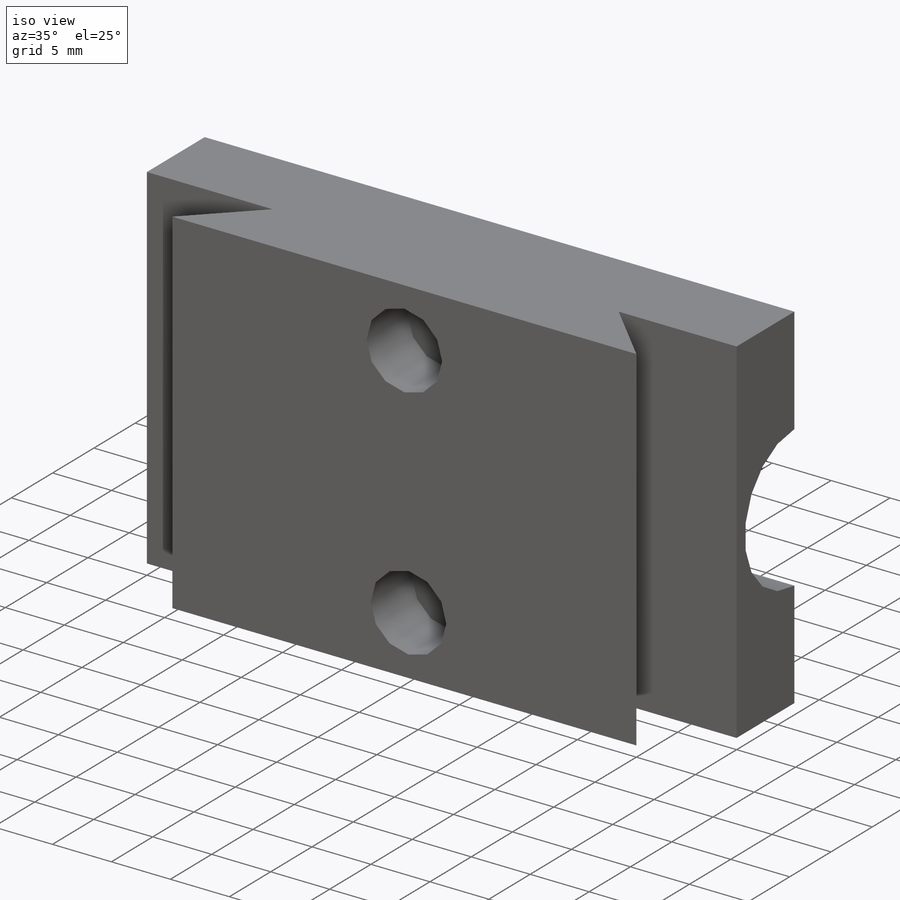
[diagram: iso view]
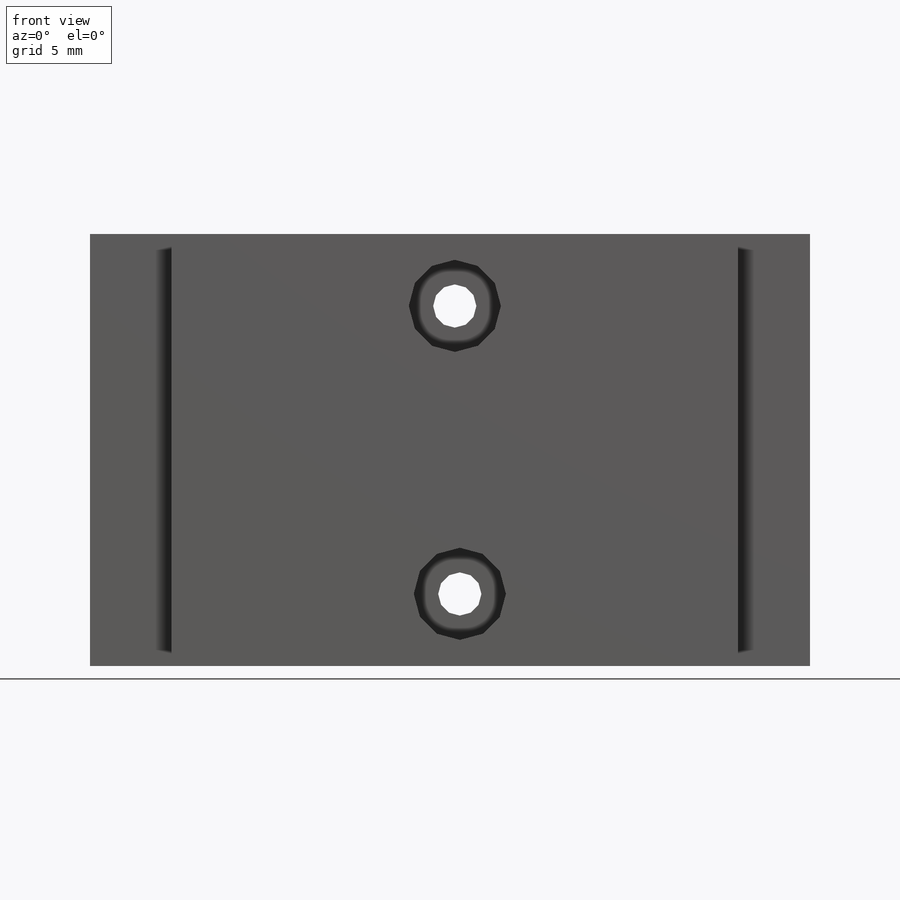
[diagram: front view]
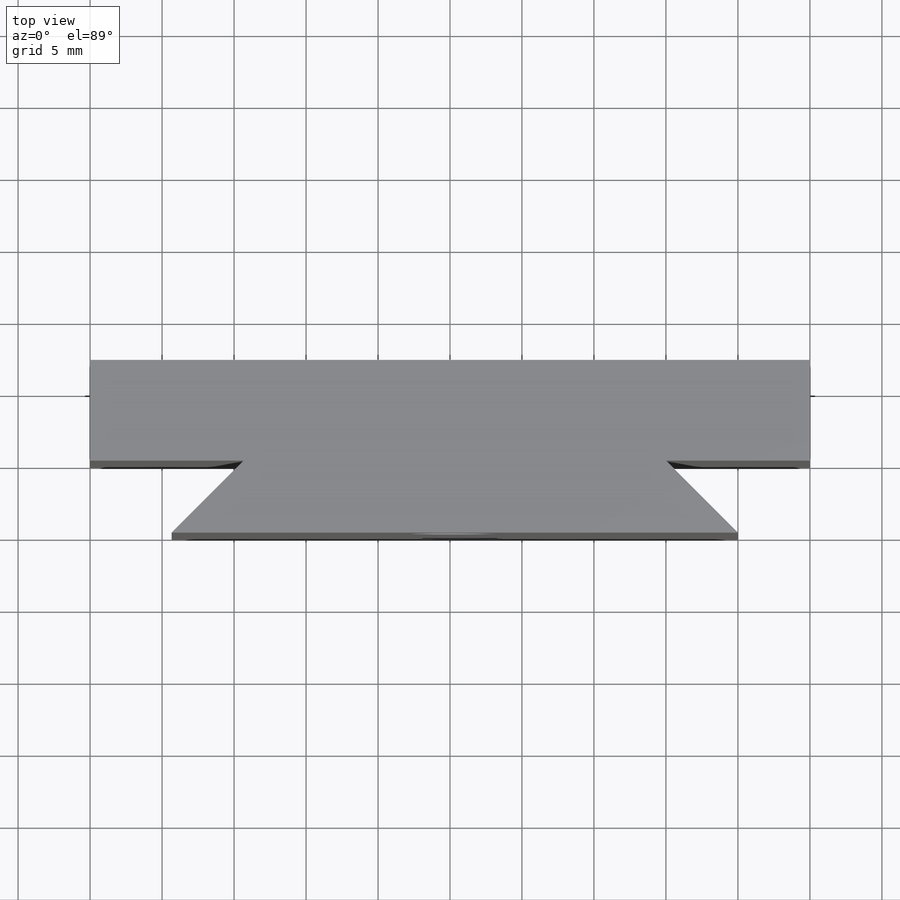
[diagram: top view]
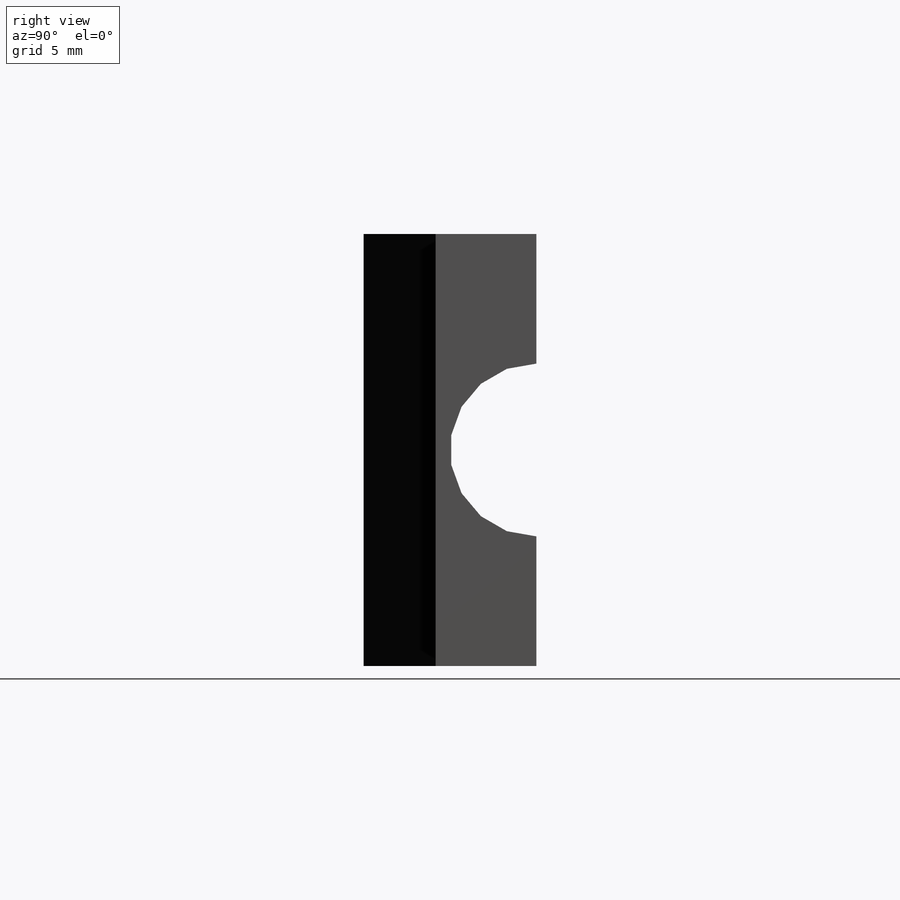
[diagram: right view]
SOLIDWORKS PART (.sldprt)
format: sldprt  version: not decoded by parser v0  size: 276,992 bytes
history: native  units: mm
features: sketch x6, cut_extrude x4, plane x3, extrude x2, material x1 (+8 scaffold rows collapsed)
feature tree (24):
  scaffold x8  (default folders/planes/origin — collapsed)
  material  "ABS"
  plane  "Спереди"
  plane  "Сверху"
  plane  "Справа"
  sketch  "Эскиз1"
  extrude  "основание"  Depth=10mm
  sketch  "Эскиз2"  dims[c1.D1=10.0mm c2.D1=135.0deg c3.D1=10.0mm]
  cut_extrude  "Ластахвост"  [1 undecoded]
  sketch  "Эскиз8"
  extrude  "Бобышка-Вытянуть1"  Depth=2mm
  sketch  "Эскиз11"  dims[D1=~2.603902mm]
  cut_extrude  "Вырез-Вытянуть2"  [1 undecoded]
  sketch  "Эскиз12"  dims[D1=5.0mm]
  cut_extrude  "Вырез-Вытянуть3"  [1 undecoded]
  cut_extrude  "Вырез-Вытянуть4"  [1 undecoded]
  sketch  "Эскиз12<3>"  dims[D1=5.0mm]
decode coverage: 6 of 12 modeling features carry decoded parameters
note: ~ marks probable driven/reference dimensions
note: 4 parameter values undecoded
summary: no parameter record found for 4 features
note: suppression state not decoded; provenance and decode notes live in map.json
